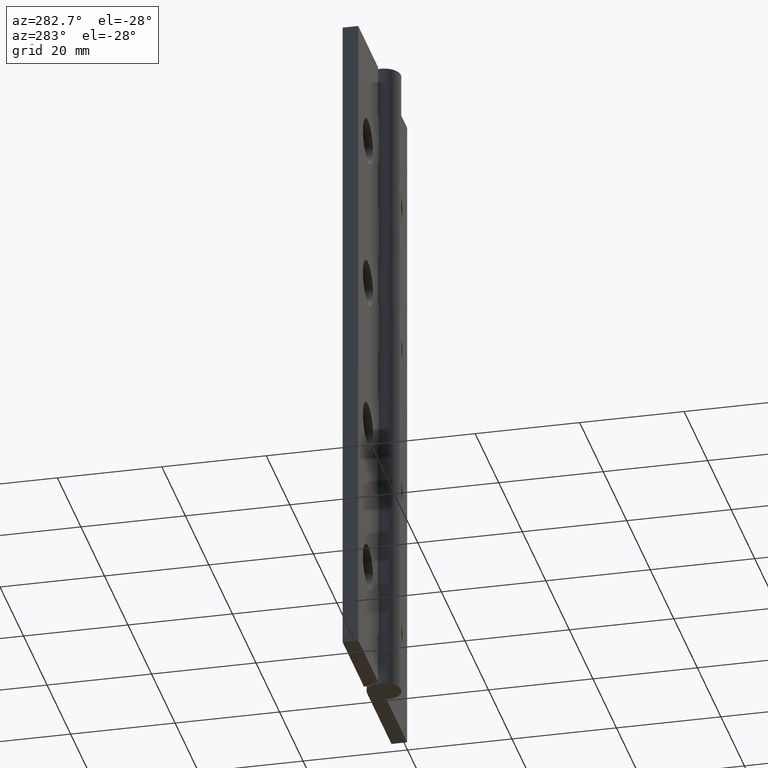
[diagram: clean part render]
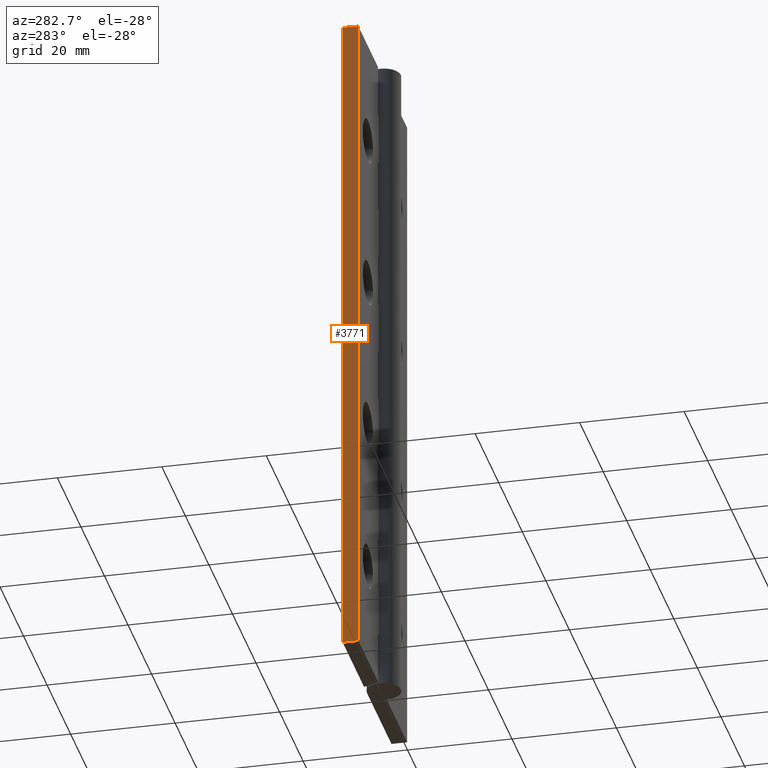
[diagram: same view with one face highlighted and labeled with its STEP entity id]
A machine part, auxiliary view. The second image highlights one B-rep face of the part: STEP entity #3771.
In plain terms, the highlighted face is a freeform B-spline surface patch.
Its self-contained STEP definition (entity closure, byte-faithful):
#2831=CARTESIAN_POINT('',(-20.749991999999899,0.250002000000000,129.999991999999990));
#2832=VERTEX_POINT('',#2831);
#2838=CARTESIAN_POINT('',(-20.749991999999899,0.250002000000000,0.0));
#2839=VERTEX_POINT('',#2838);
#2840=CARTESIAN_POINT('',(-20.749991999999899,0.250002000000000,0.0));
#2841=CARTESIAN_POINT('',(-20.749991999999899,0.250002000000000,129.999991999999990));
#2842=QUASI_UNIFORM_CURVE('',1,(#2840,#2841),.UNSPECIFIED.,.F.,.U.);
#2843=EDGE_CURVE('',#2839,#2832,#2842,.T.);
#3744=CARTESIAN_POINT('',(-20.749991999999899,0.100152005814582,136.493491348434790));
#3745=CARTESIAN_POINT('',(-20.749991999999899,0.100152005814582,-6.493502835306298));
#3746=CARTESIAN_POINT('',(-20.749991999999899,3.399852074651689,136.493491348434790));
#3747=CARTESIAN_POINT('',(-20.749991999999899,3.399852074651689,-6.493502835306298));
#3748=B_SPLINE_SURFACE_WITH_KNOTS('',1,1,((#3744,#3746),(#3745,#3747)),.UNSPECIFIED.,.F.,.F.,.U.,(2,2),(2,2),(0.0,142.986994183741100),(0.0,3.299700068837107),.UNSPECIFIED.);
#3749=CARTESIAN_POINT('',(-20.749991999999899,3.250002000000000,129.999991999999990));
#3750=VERTEX_POINT('',#3749);
#3751=CARTESIAN_POINT('',(-20.749991999999899,0.250002000000000,129.999991999999990));
#3752=CARTESIAN_POINT('',(-20.749991999999899,3.250002000000000,129.999991999999990));
#3753=QUASI_UNIFORM_CURVE('',1,(#3751,#3752),.UNSPECIFIED.,.F.,.U.);
#3754=EDGE_CURVE('',#2832,#3750,#3753,.T.);
#3755=ORIENTED_EDGE('',*,*,#3754,.T.);
#3756=CARTESIAN_POINT('',(-20.749991999999899,3.250002000000000,0.0));
#3757=VERTEX_POINT('',#3756);
#3758=CARTESIAN_POINT('',(-20.749991999999899,3.250002000000000,0.0));
#3759=CARTESIAN_POINT('',(-20.749991999999899,3.250002000000000,129.999991999999990));
#3760=QUASI_UNIFORM_CURVE('',1,(#3758,#3759),.UNSPECIFIED.,.F.,.U.);
#3761=EDGE_CURVE('',#3757,#3750,#3760,.T.);
#3762=ORIENTED_EDGE('',*,*,#3761,.F.);
#3763=CARTESIAN_POINT('',(-20.749991999999899,0.250002000000000,0.0));
#3764=CARTESIAN_POINT('',(-20.749991999999899,3.250002000000000,0.0));
#3765=QUASI_UNIFORM_CURVE('',1,(#3763,#3764),.UNSPECIFIED.,.F.,.U.);
#3766=EDGE_CURVE('',#2839,#3757,#3765,.T.);
#3767=ORIENTED_EDGE('',*,*,#3766,.F.);
#3768=ORIENTED_EDGE('',*,*,#2843,.T.);
#3769=EDGE_LOOP('',(#3755,#3762,#3767,#3768));
#3770=FACE_OUTER_BOUND('',#3769,.T.);
#3771=ADVANCED_FACE('',(#3770),#3748,.F.);